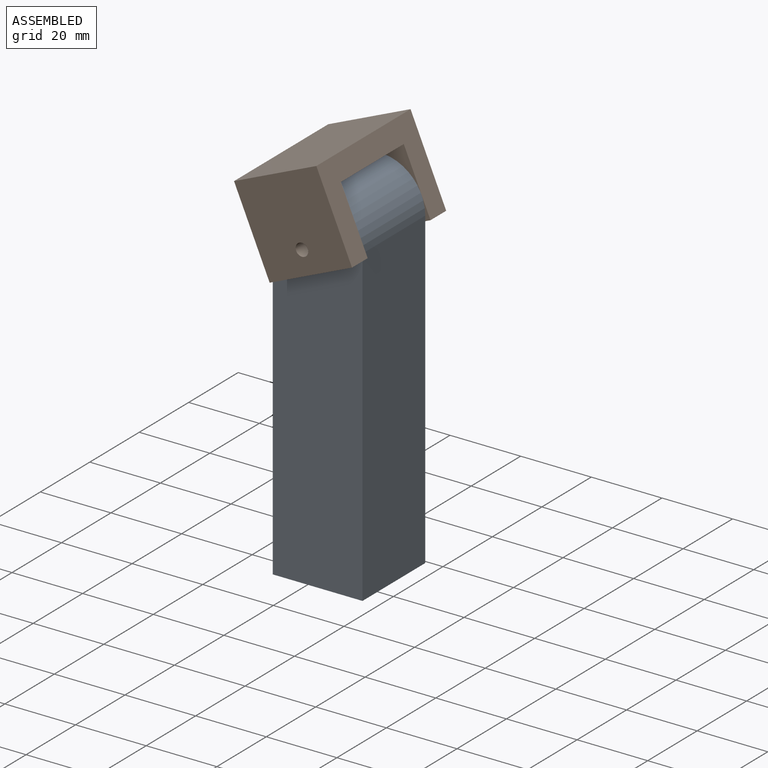
[diagram: assembled view]
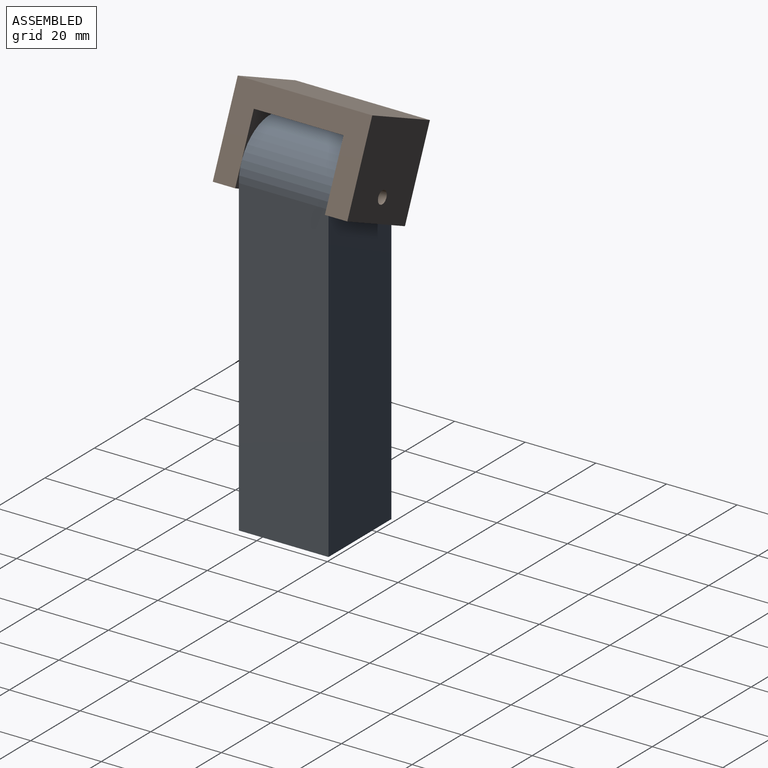
[diagram: assembled view, second angle]
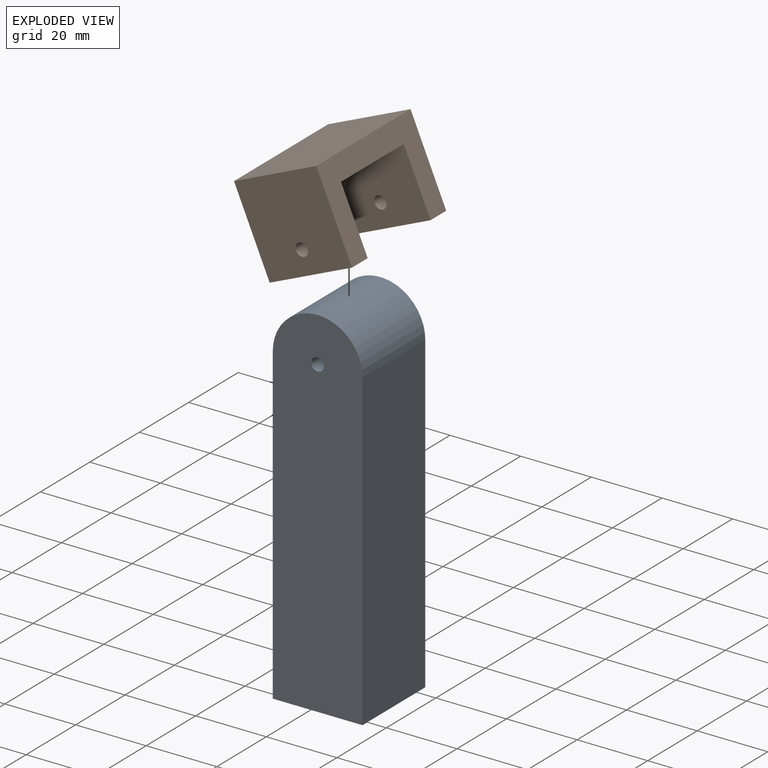
[diagram: exploded view]
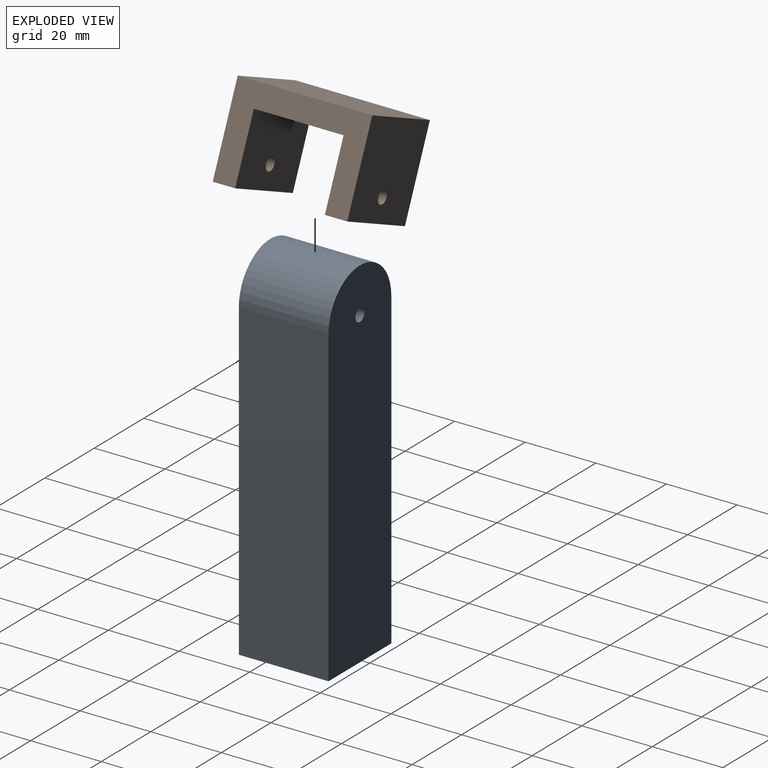
[diagram: exploded view, second angle]
ASSEMBLY  parts=2 mates=2
PART A: 14 faces, bbox 25.4x25.4x101.6 mm
  f0: plane 25.4x25.4mm, normal (0,0,-1), area 505.5mm2, adj f1,f3,f5,f6,f7,f8,f9,f10
  f1: plane 88.9x25.4mm, normal (1,0,0), area 2258.1mm2, adj f0,f2,f5,f6
  f2: cylinder r=12.7mm len=25.4mm, axis (0,1,0), area 1013.4mm2, adj f1,f3,f5,f6
  f3: plane 88.9x25.4mm, normal (-1,0,0), area 2258.1mm2, adj f0,f2,f5,f6
  f4: cylinder r=1.79mm len=25.4mm, axis (0,1,0), area 285.8mm2, adj f5,f6
  f5: plane 101.6x25.4mm, normal (0,-1,0), area 2501.3mm2, adj f0,f1,f2,f3,f4
  f6: plane 101.6x25.4mm, normal (0,1,0), area 2501.3mm2, adj f0,f1,f2,f3,f4
  f7: plane 19.05x7.33mm, normal (-1,0,0), area 139.7mm2, adj f0,f8,f12,f13
  f8: plane 19.05x6.35mm, normal (-0.5,0.87,0), area 139.7mm2, adj f0,f7,f9,f13
  f9: plane 19.05x6.35mm, normal (0.5,0.87,0), area 139.7mm2, adj f0,f8,f10,f13
  f10: plane 19.05x7.33mm, normal (1,0,0), area 139.7mm2, adj f0,f9,f11,f13
  f11: plane 19.05x6.35mm, normal (0.5,-0.87,0), area 139.7mm2, adj f0,f10,f12,f13
  f12: plane 19.05x6.35mm, normal (-0.5,-0.87,0), area 139.7mm2, adj f0,f7,f11,f13
  f13: plane 14.66x12.7mm, normal (0,0,-1), area 139.7mm2, adj f7,f8,f9,f10,f11,f12
PART B: 12 faces, bbox 25.4x38.1x25.4 mm
  f0: plane 25.4x6.35mm, normal (0,0,-1), area 161.3mm2, adj f1,f2,f5,f9
  f1: plane 38.1x25.4mm, normal (1,0,0), area 483.9mm2, adj f0,f3,f4,f5,f6,f7,f8,f9
  f2: plane 38.1x25.4mm, normal (-1,0,0), area 483.9mm2, adj f0,f3,f4,f5,f6,f7,f8,f9
  f3: plane 25.4x25.4mm, normal (0,1,0), area 635.1mm2, adj f1,f2,f4,f6,f11
  f4: plane 38.1x25.4mm, normal (0,0,1), area 967.7mm2, adj f1,f2,f3,f5
  f5: plane 25.4x25.4mm, normal (0,-1,0), area 635.1mm2, adj f0,f1,f2,f4,f10
  f6: plane 25.4x6.35mm, normal (0,0,-1), area 161.3mm2, adj f1,f2,f3,f7
  f7: plane 25.4x19.05mm, normal (0,-1,0), area 473.8mm2, adj f1,f2,f6,f8,f11
  f8: plane 25.4x25.4mm, normal (0,0,-1), area 645.2mm2, adj f1,f2,f7,f9
  f9: plane 25.4x19.05mm, normal (0,1,0), area 473.8mm2, adj f0,f1,f2,f8,f10
  f10: cylinder r=1.79mm len=6.35mm, axis (0,-1,0), area 71.3mm2, adj f5,f9
  f11: cylinder r=1.79mm len=6.35mm, axis (0,-1,0), area 71.3mm2, adj f3,f7
PLACE A t=(-48.5,20.18,-6.51)mm fixed
PLACE B rot(axis=(0,-1,0),23.4deg) t=(-38.32,7.48,88.22)mm
MATE cylindrical B.f10 <-> A.f2  axis (0,-1,0) through (-35.8,20.18,82.39)mm
MATE planar B.f7 <-> A.f6  axis (0,-1,0) through (-37.09,20.18,85.37)mm
